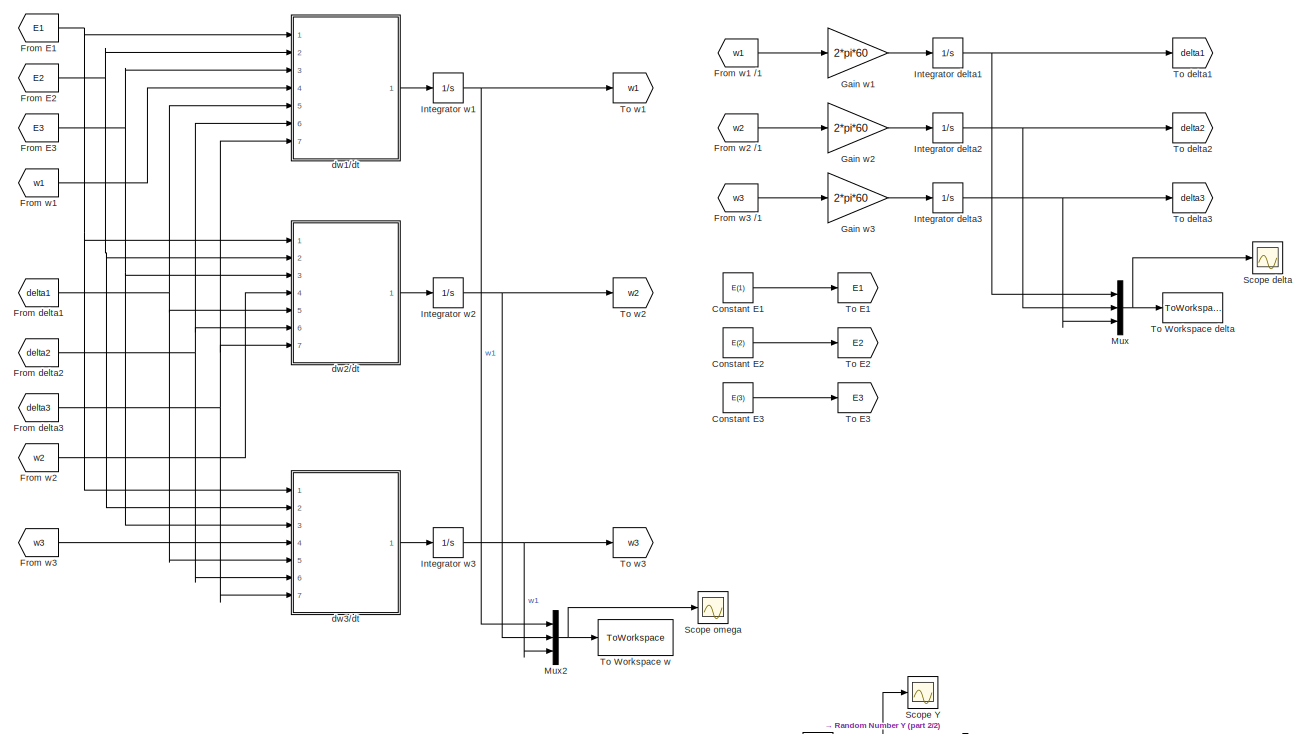
[diagram: root canvas - part 1/2, full width, top band]
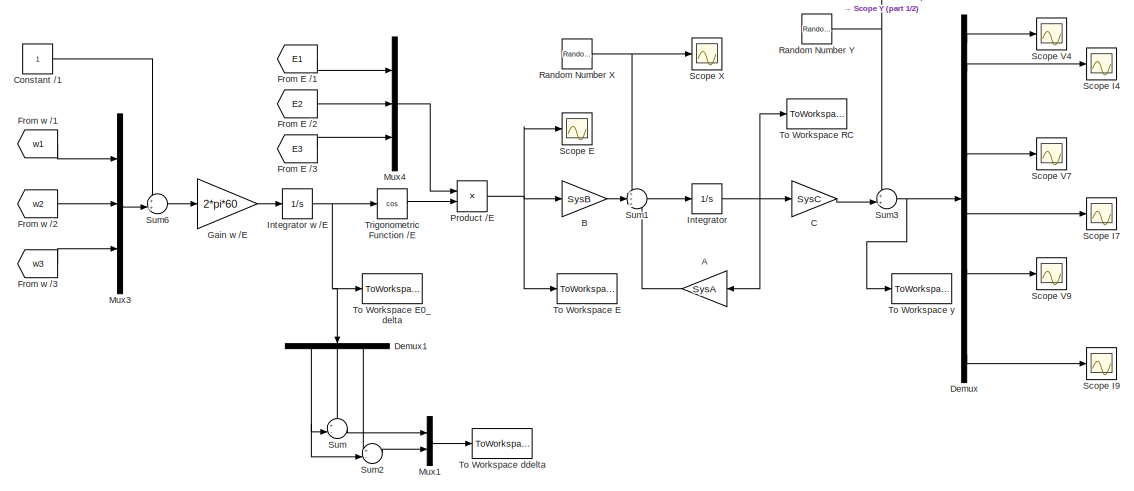
[diagram: root canvas - part 2/2, full width, bottom band]
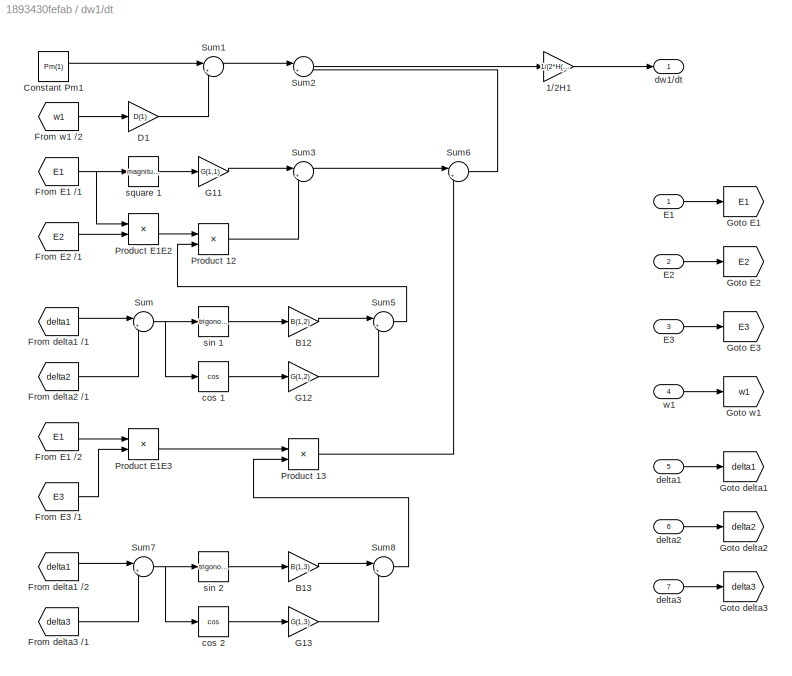
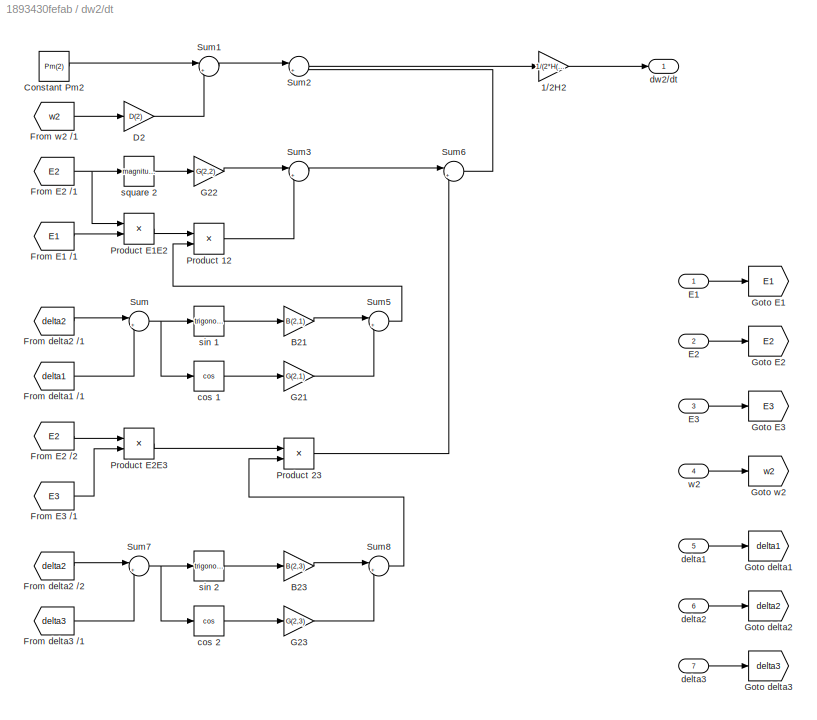
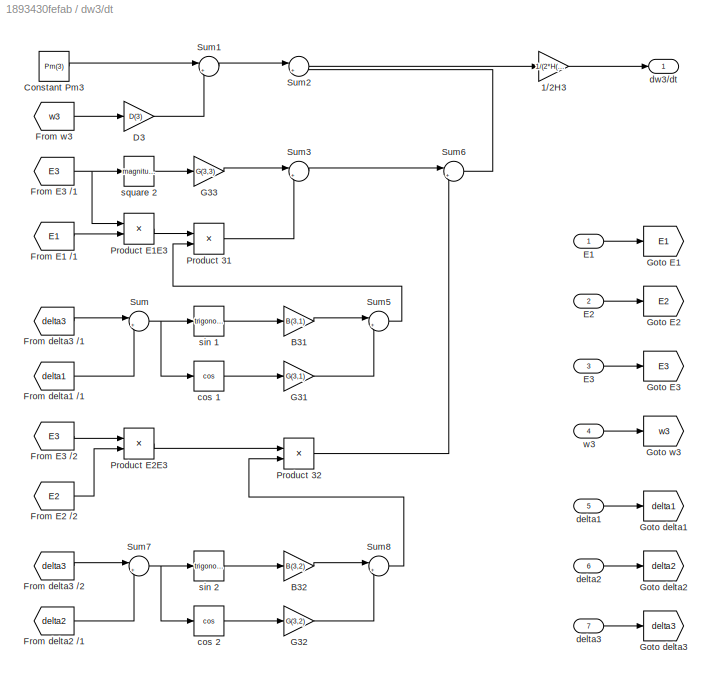
MODEL slx_1893430fefab
KIND model
BLOCK [Gain] A
  Gain = SysA
  Multiplication = Matrix(K*u)
  OutDataTypeStr = Inherit: Inherit via internal rule
  ParamDataTypeStr = Inherit: Inherit via internal rule
  SaturateOnIntegerOverflow = off
BLOCK [Gain] B
  Gain = SysB
  Multiplication = Matrix(K*u)
  OutDataTypeStr = Inherit: Inherit via internal rule
  ParamDataTypeStr = Inherit: Inherit via internal rule
  SaturateOnIntegerOverflow = off
BLOCK [Gain] C
  Gain = SysC
  Multiplication = Matrix(K*u)
  OutDataTypeStr = Inherit: Inherit via internal rule
  ParamDataTypeStr = Inherit: Inherit via internal rule
  SaturateOnIntegerOverflow = off
BLOCK [Constant] Constant //1
BLOCK [Constant] Constant E1
  Value = E(1)
BLOCK [Constant] Constant E2
  Value = E(2)
BLOCK [Constant] Constant E3
  Value = E(3)
BLOCK [Demux] Demux
  DisplayOption = bar
  Outputs = 12
  Ports = [1, 12]
BLOCK [Demux] Demux1
  DisplayOption = bar
  Outputs = 3
  Ports = [1, 3]
BLOCK [From] From E //1
  GotoTag = E1
BLOCK [From] From E //2
  GotoTag = E2
BLOCK [From] From E //3
  GotoTag = E3
BLOCK [From] From E1
  GotoTag = E1
BLOCK [From] From E2
  GotoTag = E2
BLOCK [From] From E3
  GotoTag = E3
BLOCK [From] From delta1
  GotoTag = delta1
BLOCK [From] From delta2
  GotoTag = delta2
BLOCK [From] From delta3
  GotoTag = delta3
BLOCK [From] From w //1
  GotoTag = w1
BLOCK [From] From w //2
  GotoTag = w2
BLOCK [From] From w //3
  GotoTag = w3
BLOCK [From] From w1
  GotoTag = w1
BLOCK [From] From w1 //1
  GotoTag = w1
BLOCK [From] From w2
  GotoTag = w2
BLOCK [From] From w2 //1
  GotoTag = w2
BLOCK [From] From w3
  GotoTag = w3
BLOCK [From] From w3 //1
  GotoTag = w3
BLOCK [Gain] Gain w //E
  Gain = 2*pi*60
  OutDataTypeStr = Inherit: Inherit via internal rule
  ParamDataTypeStr = Inherit: Inherit via internal rule
  SaturateOnIntegerOverflow = off
BLOCK [Gain] Gain w1
  Gain = 2*pi*60
  OutDataTypeStr = Inherit: Inherit via internal rule
  ParamDataTypeStr = Inherit: Inherit via internal rule
  SaturateOnIntegerOverflow = off
BLOCK [Gain] Gain w2
  Gain = 2*pi*60
  OutDataTypeStr = Inherit: Inherit via internal rule
  ParamDataTypeStr = Inherit: Inherit via internal rule
  SaturateOnIntegerOverflow = off
BLOCK [Gain] Gain w3
  Gain = 2*pi*60
  OutDataTypeStr = Inherit: Inherit via internal rule
  ParamDataTypeStr = Inherit: Inherit via internal rule
  SaturateOnIntegerOverflow = off
BLOCK [Integrator] Integrator
  InitialCondition = RC_State0
  Ports = [1, 1]
BLOCK [Integrator] Integrator delta1
  InitialCondition = delta0(1)
  Ports = [1, 1]
BLOCK [Integrator] Integrator delta2
  InitialCondition = delta0(2)
  Ports = [1, 1]
BLOCK [Integrator] Integrator delta3
  InitialCondition = delta0(3)
  Ports = [1, 1]
BLOCK [Integrator] Integrator w //E
  InitialCondition = E0_delta
  Ports = [1, 1]
BLOCK [Integrator] Integrator w1
  InitialCondition = w0(1)
  Ports = [1, 1]
BLOCK [Integrator] Integrator w2
  InitialCondition = w0(2)
  Ports = [1, 1]
BLOCK [Integrator] Integrator w3
  InitialCondition = w0(3)
  Ports = [1, 1]
BLOCK [Mux] Mux
  DisplayOption = bar
  Inputs = 3
  Ports = [3, 1]
BLOCK [Mux] Mux1
  DisplayOption = bar
  Inputs = 2
  Ports = [2, 1]
BLOCK [Mux] Mux2
  DisplayOption = bar
  Inputs = 3
  Ports = [3, 1]
BLOCK [Mux] Mux3
  DisplayOption = bar
  Inputs = 3
  Ports = [3, 1]
BLOCK [Mux] Mux4
  DisplayOption = bar
  Inputs = 3
  Ports = [3, 1]
BLOCK [Product] Product //E
  InputSameDT = off
  OutDataTypeStr = Inherit: Inherit via internal rule
  Ports = [2, 1]
  RndMeth = Floor
  SaturateOnIntegerOverflow = off
BLOCK [RandomNumber] Random Number X
  SampleTime = 1/60/96
  Seed = [round(rand(1)*10000)]
  Variance = XNoisePWR
BLOCK [RandomNumber] Random Number Y
  SampleTime = 1/60/96
  Seed = [round(rand(1)*10000)]
  Variance = YNoisePWR
BLOCK [Scope] Scope E
  DataFormat = StructureWithTime
  Floating = off
  MaxDataPoints = 50000
  NumInputPorts = 1
  Ports = [1]
  SampleTime = 0
  ShowLegends = off
BLOCK [Scope] Scope I4
  DataFormat = StructureWithTime
  Floating = off
  MaxDataPoints = 50000
  NumInputPorts = 1
  Ports = [1]
  SampleTime = 0
  SaveName = ScopeData6
  ShowLegends = off
BLOCK [Scope] Scope I7
  DataFormat = StructureWithTime
  Floating = off
  MaxDataPoints = 50000
  NumInputPorts = 1
  Ports = [1]
  SampleTime = 0
  SaveName = ScopeData7
  ShowLegends = off
BLOCK [Scope] Scope I9
  DataFormat = StructureWithTime
  Floating = off
  MaxDataPoints = 50000
  NumInputPorts = 1
  Ports = [1]
  SampleTime = 0
  SaveName = ScopeData8
  ShowLegends = off
BLOCK [Scope] Scope V4
  DataFormat = StructureWithTime
  Floating = off
  MaxDataPoints = 50000
  NumInputPorts = 1
  Ports = [1]
  SampleTime = 0
  SaveName = ScopeData1
  ShowLegends = off
BLOCK [Scope] Scope V7
  DataFormat = StructureWithTime
  Floating = off
  MaxDataPoints = 50000
  NumInputPorts = 1
  Ports = [1]
  SampleTime = 0
  SaveName = ScopeData2
  ShowLegends = off
BLOCK [Scope] Scope V9
  DataFormat = StructureWithTime
  Floating = off
  MaxDataPoints = 50000
  NumInputPorts = 1
  Ports = [1]
  SampleTime = 0
  SaveName = ScopeData3
  ShowLegends = off
BLOCK [Scope] Scope X
  DataFormat = StructureWithTime
  Floating = off
  MaxDataPoints = 50000
  NumInputPorts = 1
  Ports = [1]
  SampleTime = 0
  SaveName = ScopeData10
  ShowLegends = off
BLOCK [Scope] Scope Y
  DataFormat = StructureWithTime
  Floating = off
  MaxDataPoints = 50000
  NumInputPorts = 1
  Ports = [1]
  SampleTime = 0
  SaveName = ScopeData9
  ShowLegends = off
BLOCK [Scope] Scope delta
  DataFormat = StructureWithTime
  Floating = off
  MaxDataPoints = 50000
  NumInputPorts = 1
  Ports = [1]
  SampleTime = 0
  SaveName = ScopeData4
  ShowLegends = off
BLOCK [Scope] Scope omega
  DataFormat = StructureWithTime
  Floating = off
  MaxDataPoints = 50000
  NumInputPorts = 1
  Ports = [1]
  SampleTime = 0
  SaveName = ScopeData5
  ShowLegends = off
BLOCK [Sum] Sum
  IconShape = round
  InputSameDT = off
  Inputs = +-|
  OutDataTypeStr = Inherit: Inherit via internal rule
  Ports = [2, 1]
  SaturateOnIntegerOverflow = off
BLOCK [Sum] Sum1
  IconShape = round
  InputSameDT = off
  Inputs = +++
  OutDataTypeStr = Inherit: Inherit via internal rule
  Ports = [3, 1]
  SaturateOnIntegerOverflow = off
BLOCK [Sum] Sum2
  IconShape = round
  InputSameDT = off
  Inputs = +-|
  OutDataTypeStr = Inherit: Inherit via internal rule
  Ports = [2, 1]
  SaturateOnIntegerOverflow = off
BLOCK [Sum] Sum3
  IconShape = round
  InputSameDT = off
  Inputs = ++|
  OutDataTypeStr = Inherit: Inherit via internal rule
  Ports = [2, 1]
  SaturateOnIntegerOverflow = off
BLOCK [Sum] Sum6
  IconShape = round
  InputSameDT = off
  Inputs = ++|
  OutDataTypeStr = Inherit: Inherit via internal rule
  Ports = [2, 1]
  SaturateOnIntegerOverflow = off
BLOCK [Goto] To E1
  GotoTag = E1
BLOCK [Goto] To E2
  GotoTag = E2
BLOCK [Goto] To E3
  GotoTag = E3
BLOCK [ToWorkspace] To Workspace E
  MaxDataPoints = Inf
  Ports = [1]
  SampleTime = -1
  SaveFormat = Timeseries
  VariableName = u_input
BLOCK [ToWorkspace] To Workspace E0_delta
  MaxDataPoints = 1
  Ports = [1]
  SampleTime = -1
  VariableName = E0_delta
BLOCK [ToWorkspace] To Workspace RC
  MaxDataPoints = Inf
  Ports = [1]
  SampleTime = -1
  SaveFormat = Timeseries
  VariableName = RC_State
BLOCK [ToWorkspace] To Workspace ddelta
  MaxDataPoints = Inf
  Ports = [1]
  SampleTime = -1
  SaveFormat = Timeseries
  VariableName = ddelta
BLOCK [ToWorkspace] To Workspace delta
  MaxDataPoints = 1
  Ports = [1]
  SampleTime = -1
  VariableName = deltaValues
BLOCK [ToWorkspace] To Workspace w
  MaxDataPoints = Inf
  Ports = [1]
  SampleTime = -1
  SaveFormat = Timeseries
  VariableName = omegaValues
BLOCK [ToWorkspace] To Workspace y
  MaxDataPoints = Inf
  Ports = [1]
  SampleTime = -1
  SaveFormat = Timeseries
  VariableName = y_output
BLOCK [Goto] To delta1
  GotoTag = delta1
BLOCK [Goto] To delta2
  GotoTag = delta2
BLOCK [Goto] To delta3
  GotoTag = delta3
BLOCK [Goto] To w1
  GotoTag = w1
BLOCK [Goto] To w2
  GotoTag = w2
BLOCK [Goto] To w3
  GotoTag = w3
BLOCK [Trigonometry] Trigonometric Function //E
  Operator = cos
  Ports = [1, 1]
BLOCK [SubSystem] dw1//dt
  Ports = [7, 1]
  RequestExecContextInheritance = off
BLOCK [Gain] dw1//dt/1//2H1
  Gain = 1/(2*H(1))
  OutDataTypeStr = Inherit: Inherit via internal rule
  ParamDataTypeStr = Inherit: Inherit via internal rule
  SaturateOnIntegerOverflow = off
BLOCK [Gain] dw1//dt/B12
  Gain = B(1,2)
  OutDataTypeStr = Inherit: Inherit via internal rule
  ParamDataTypeStr = Inherit: Inherit via internal rule
  SaturateOnIntegerOverflow = off
BLOCK [Gain] dw1//dt/B13
  Gain = B(1,3)
  OutDataTypeStr = Inherit: Inherit via internal rule
  ParamDataTypeStr = Inherit: Inherit via internal rule
  SaturateOnIntegerOverflow = off
BLOCK [Constant] dw1//dt/Constant Pm1
  Value = Pm(1)
BLOCK [Gain] dw1//dt/D1
  Gain = D(1)
  OutDataTypeStr = Inherit: Inherit via internal rule
  ParamDataTypeStr = Inherit: Inherit via internal rule
  SaturateOnIntegerOverflow = off
BLOCK [Inport] dw1//dt/E1
  IconDisplay = Port number
BLOCK [Inport] dw1//dt/E2
  IconDisplay = Port number
  Port = 2
BLOCK [Inport] dw1//dt/E3
  IconDisplay = Port number
  Port = 3
BLOCK [From] dw1//dt/From E1 //1
  GotoTag = E1
BLOCK [From] dw1//dt/From E1 //2
  GotoTag = E1
BLOCK [From] dw1//dt/From E2 //1
  GotoTag = E2
BLOCK [From] dw1//dt/From E3 //1
  GotoTag = E3
BLOCK [From] dw1//dt/From delta1 //1
  GotoTag = delta1
BLOCK [From] dw1//dt/From delta1 //2
  GotoTag = delta1
BLOCK [From] dw1//dt/From delta2 //1
  GotoTag = delta2
BLOCK [From] dw1//dt/From delta3 //1
  GotoTag = delta3
BLOCK [From] dw1//dt/From w1 //2
  GotoTag = w1
BLOCK [Gain] dw1//dt/G11
  Gain = G(1,1)
  OutDataTypeStr = Inherit: Inherit via internal rule
  ParamDataTypeStr = Inherit: Inherit via internal rule
  SaturateOnIntegerOverflow = off
BLOCK [Gain] dw1//dt/G12
  Gain = G(1,2)
  OutDataTypeStr = Inherit: Inherit via internal rule
  ParamDataTypeStr = Inherit: Inherit via internal rule
  SaturateOnIntegerOverflow = off
BLOCK [Gain] dw1//dt/G13
  Gain = G(1,3)
  OutDataTypeStr = Inherit: Inherit via internal rule
  ParamDataTypeStr = Inherit: Inherit via internal rule
  SaturateOnIntegerOverflow = off
BLOCK [Goto] dw1//dt/Goto E1
  GotoTag = E1
BLOCK [Goto] dw1//dt/Goto E2
  GotoTag = E2
BLOCK [Goto] dw1//dt/Goto E3
  GotoTag = E3
BLOCK [Goto] dw1//dt/Goto delta1
  GotoTag = delta1
BLOCK [Goto] dw1//dt/Goto delta2
  GotoTag = delta2
BLOCK [Goto] dw1//dt/Goto delta3
  GotoTag = delta3
BLOCK [Goto] dw1//dt/Goto w1
  GotoTag = w1
BLOCK [Product] dw1//dt/Product 12
  InputSameDT = off
  OutDataTypeStr = Inherit: Inherit via internal rule
  Ports = [2, 1]
  RndMeth = Floor
  SaturateOnIntegerOverflow = off
BLOCK [Product] dw1//dt/Product 13
  InputSameDT = off
  OutDataTypeStr = Inherit: Inherit via internal rule
  Ports = [2, 1]
  RndMeth = Floor
  SaturateOnIntegerOverflow = off
BLOCK [Product] dw1//dt/Product E1E2
  InputSameDT = off
  OutDataTypeStr = Inherit: Inherit via internal rule
  Ports = [2, 1]
  RndMeth = Floor
  SaturateOnIntegerOverflow = off
BLOCK [Product] dw1//dt/Product E1E3
  InputSameDT = off
  OutDataTypeStr = Inherit: Inherit via internal rule
  Ports = [2, 1]
  RndMeth = Floor
  SaturateOnIntegerOverflow = off
BLOCK [Sum] dw1//dt/Sum
  IconShape = round
  InputSameDT = off
  Inputs = |+-
  OutDataTypeStr = Inherit: Inherit via internal rule
  Ports = [2, 1]
  SaturateOnIntegerOverflow = off
BLOCK [Sum] dw1//dt/Sum1
  IconShape = round
  InputSameDT = off
  Inputs = |+-
  OutDataTypeStr = Inherit: Inherit via internal rule
  Ports = [2, 1]
  SaturateOnIntegerOverflow = off
BLOCK [Sum] dw1//dt/Sum2
  IconShape = round
  InputSameDT = off
  Inputs = |+-
  OutDataTypeStr = Inherit: Inherit via internal rule
  Ports = [2, 1]
  SaturateOnIntegerOverflow = off
BLOCK [Sum] dw1//dt/Sum3
  IconShape = round
  InputSameDT = off
  Inputs = |++
  OutDataTypeStr = Inherit: Inherit via internal rule
  Ports = [2, 1]
  SaturateOnIntegerOverflow = off
BLOCK [Sum] dw1//dt/Sum5
  IconShape = round
  InputSameDT = off
  Inputs = |++
  OutDataTypeStr = Inherit: Inherit via internal rule
  Ports = [2, 1]
  SaturateOnIntegerOverflow = off
BLOCK [Sum] dw1//dt/Sum6
  IconShape = round
  InputSameDT = off
  Inputs = |++
  OutDataTypeStr = Inherit: Inherit via internal rule
  Ports = [2, 1]
  SaturateOnIntegerOverflow = off
BLOCK [Sum] dw1//dt/Sum7
  IconShape = round
  InputSameDT = off
  Inputs = |+-
  OutDataTypeStr = Inherit: Inherit via internal rule
  Ports = [2, 1]
  SaturateOnIntegerOverflow = off
BLOCK [Sum] dw1//dt/Sum8
  IconShape = round
  InputSameDT = off
  Inputs = |++
  OutDataTypeStr = Inherit: Inherit via internal rule
  Ports = [2, 1]
  SaturateOnIntegerOverflow = off
BLOCK [Trigonometry] dw1//dt/cos 1
  Operator = cos
  Ports = [1, 1]
BLOCK [Trigonometry] dw1//dt/cos 2
  Operator = cos
  Ports = [1, 1]
BLOCK [Inport] dw1//dt/delta1
  IconDisplay = Port number
  Port = 5
BLOCK [Inport] dw1//dt/delta2
  IconDisplay = Port number
  Port = 6
BLOCK [Inport] dw1//dt/delta3
  IconDisplay = Port number
  Port = 7
BLOCK [Outport] dw1//dt/dw1//dt
  IconDisplay = Port number
BLOCK [Trigonometry] dw1//dt/sin 1
  Ports = [1, 1]
BLOCK [Trigonometry] dw1//dt/sin 2
  Ports = [1, 1]
BLOCK [Math] dw1//dt/square 1
  Operator = magnitude^2
  Ports = [1, 1]
BLOCK [Inport] dw1//dt/w1
  IconDisplay = Port number
  Port = 4
BLOCK [SubSystem] dw2//dt
  Ports = [7, 1]
  RequestExecContextInheritance = off
BLOCK [Gain] dw2//dt/1//2H2
  Gain = 1/(2*H(2))
  OutDataTypeStr = Inherit: Inherit via internal rule
  ParamDataTypeStr = Inherit: Inherit via internal rule
  SaturateOnIntegerOverflow = off
BLOCK [Gain] dw2//dt/B21
  Gain = B(2,1)
  OutDataTypeStr = Inherit: Inherit via internal rule
  ParamDataTypeStr = Inherit: Inherit via internal rule
  SaturateOnIntegerOverflow = off
BLOCK [Gain] dw2//dt/B23
  Gain = B(2,3)
  OutDataTypeStr = Inherit: Inherit via internal rule
  ParamDataTypeStr = Inherit: Inherit via internal rule
  SaturateOnIntegerOverflow = off
BLOCK [Constant] dw2//dt/Constant Pm2
  Value = Pm(2)
BLOCK [Gain] dw2//dt/D2
  Gain = D(2)
  OutDataTypeStr = Inherit: Inherit via internal rule
  ParamDataTypeStr = Inherit: Inherit via internal rule
  SaturateOnIntegerOverflow = off
BLOCK [Inport] dw2//dt/E1
  IconDisplay = Port number
BLOCK [Inport] dw2//dt/E2
  IconDisplay = Port number
  Port = 2
BLOCK [Inport] dw2//dt/E3
  IconDisplay = Port number
  Port = 3
BLOCK [From] dw2//dt/From E1 //1
  GotoTag = E1
BLOCK [From] dw2//dt/From E2 //1
  GotoTag = E2
BLOCK [From] dw2//dt/From E2 //2
  GotoTag = E2
BLOCK [From] dw2//dt/From E3 //1
  GotoTag = E3
BLOCK [From] dw2//dt/From delta1 //1
  GotoTag = delta1
BLOCK [From] dw2//dt/From delta2 //1
  GotoTag = delta2
BLOCK [From] dw2//dt/From delta2 //2
  GotoTag = delta2
BLOCK [From] dw2//dt/From delta3 //1
  GotoTag = delta3
BLOCK [From] dw2//dt/From w2 //1
  GotoTag = w2
BLOCK [Gain] dw2//dt/G21
  Gain = G(2,1)
  OutDataTypeStr = Inherit: Inherit via internal rule
  ParamDataTypeStr = Inherit: Inherit via internal rule
  SaturateOnIntegerOverflow = off
BLOCK [Gain] dw2//dt/G22
  Gain = G(2,2)
  OutDataTypeStr = Inherit: Inherit via internal rule
  ParamDataTypeStr = Inherit: Inherit via internal rule
  SaturateOnIntegerOverflow = off
BLOCK [Gain] dw2//dt/G23
  Gain = G(2,3)
  OutDataTypeStr = Inherit: Inherit via internal rule
  ParamDataTypeStr = Inherit: Inherit via internal rule
  SaturateOnIntegerOverflow = off
BLOCK [Goto] dw2//dt/Goto E1
  GotoTag = E1
BLOCK [Goto] dw2//dt/Goto E2
  GotoTag = E2
BLOCK [Goto] dw2//dt/Goto E3
  GotoTag = E3
BLOCK [Goto] dw2//dt/Goto delta1
  GotoTag = delta1
BLOCK [Goto] dw2//dt/Goto delta2
  GotoTag = delta2
BLOCK [Goto] dw2//dt/Goto delta3
  GotoTag = delta3
BLOCK [Goto] dw2//dt/Goto w2
  GotoTag = w2
BLOCK [Product] dw2//dt/Product 12
  InputSameDT = off
  OutDataTypeStr = Inherit: Inherit via internal rule
  Ports = [2, 1]
  RndMeth = Floor
  SaturateOnIntegerOverflow = off
BLOCK [Product] dw2//dt/Product 23
  InputSameDT = off
  OutDataTypeStr = Inherit: Inherit via internal rule
  Ports = [2, 1]
  RndMeth = Floor
  SaturateOnIntegerOverflow = off
BLOCK [Product] dw2//dt/Product E1E2
  InputSameDT = off
  OutDataTypeStr = Inherit: Inherit via internal rule
  Ports = [2, 1]
  RndMeth = Floor
  SaturateOnIntegerOverflow = off
BLOCK [Product] dw2//dt/Product E2E3
  InputSameDT = off
  OutDataTypeStr = Inherit: Inherit via internal rule
  Ports = [2, 1]
  RndMeth = Floor
  SaturateOnIntegerOverflow = off
BLOCK [Sum] dw2//dt/Sum
  IconShape = round
  InputSameDT = off
  Inputs = |+-
  OutDataTypeStr = Inherit: Inherit via internal rule
  Ports = [2, 1]
  SaturateOnIntegerOverflow = off
BLOCK [Sum] dw2//dt/Sum1
  IconShape = round
  InputSameDT = off
  Inputs = |+-
  OutDataTypeStr = Inherit: Inherit via internal rule
  Ports = [2, 1]
  SaturateOnIntegerOverflow = off
BLOCK [Sum] dw2//dt/Sum2
  IconShape = round
  InputSameDT = off
  Inputs = |+-
  OutDataTypeStr = Inherit: Inherit via internal rule
  Ports = [2, 1]
  SaturateOnIntegerOverflow = off
BLOCK [Sum] dw2//dt/Sum3
  IconShape = round
  InputSameDT = off
  Inputs = |++
  OutDataTypeStr = Inherit: Inherit via internal rule
  Ports = [2, 1]
  SaturateOnIntegerOverflow = off
BLOCK [Sum] dw2//dt/Sum5
  IconShape = round
  InputSameDT = off
  Inputs = |++
  OutDataTypeStr = Inherit: Inherit via internal rule
  Ports = [2, 1]
  SaturateOnIntegerOverflow = off
BLOCK [Sum] dw2//dt/Sum6
  IconShape = round
  InputSameDT = off
  Inputs = |++
  OutDataTypeStr = Inherit: Inherit via internal rule
  Ports = [2, 1]
  SaturateOnIntegerOverflow = off
BLOCK [Sum] dw2//dt/Sum7
  IconShape = round
  InputSameDT = off
  Inputs = |+-
  OutDataTypeStr = Inherit: Inherit via internal rule
  Ports = [2, 1]
  SaturateOnIntegerOverflow = off
BLOCK [Sum] dw2//dt/Sum8
  IconShape = round
  InputSameDT = off
  Inputs = |++
  OutDataTypeStr = Inherit: Inherit via internal rule
  Ports = [2, 1]
  SaturateOnIntegerOverflow = off
BLOCK [Trigonometry] dw2//dt/cos 1
  Operator = cos
  Ports = [1, 1]
BLOCK [Trigonometry] dw2//dt/cos 2
  Operator = cos
  Ports = [1, 1]
BLOCK [Inport] dw2//dt/delta1
  IconDisplay = Port number
  Port = 5
BLOCK [Inport] dw2//dt/delta2
  IconDisplay = Port number
  Port = 6
BLOCK [Inport] dw2//dt/delta3
  IconDisplay = Port number
  Port = 7
BLOCK [Outport] dw2//dt/dw2//dt
  IconDisplay = Port number
BLOCK [Trigonometry] dw2//dt/sin 1
  Ports = [1, 1]
BLOCK [Trigonometry] dw2//dt/sin 2
  Ports = [1, 1]
BLOCK [Math] dw2//dt/square 2
  Operator = magnitude^2
  Ports = [1, 1]
BLOCK [Inport] dw2//dt/w2
  IconDisplay = Port number
  Port = 4
BLOCK [SubSystem] dw3//dt
  Ports = [7, 1]
  RequestExecContextInheritance = off
BLOCK [Gain] dw3//dt/1//2H3
  Gain = 1/(2*H(3))
  OutDataTypeStr = Inherit: Inherit via internal rule
  ParamDataTypeStr = Inherit: Inherit via internal rule
  SaturateOnIntegerOverflow = off
BLOCK [Gain] dw3//dt/B31
  Gain = B(3,1)
  OutDataTypeStr = Inherit: Inherit via internal rule
  ParamDataTypeStr = Inherit: Inherit via internal rule
  SaturateOnIntegerOverflow = off
BLOCK [Gain] dw3//dt/B32
  Gain = B(3,2)
  OutDataTypeStr = Inherit: Inherit via internal rule
  ParamDataTypeStr = Inherit: Inherit via internal rule
  SaturateOnIntegerOverflow = off
BLOCK [Constant] dw3//dt/Constant Pm3
  Value = Pm(3)
BLOCK [Gain] dw3//dt/D3
  Gain = D(3)
  OutDataTypeStr = Inherit: Inherit via internal rule
  ParamDataTypeStr = Inherit: Inherit via internal rule
  SaturateOnIntegerOverflow = off
BLOCK [Inport] dw3//dt/E1
  IconDisplay = Port number
BLOCK [Inport] dw3//dt/E2
  IconDisplay = Port number
  Port = 2
BLOCK [Inport] dw3//dt/E3
  IconDisplay = Port number
  Port = 3
BLOCK [From] dw3//dt/From E1 //1
  GotoTag = E1
BLOCK [From] dw3//dt/From E2 //2
  GotoTag = E2
BLOCK [From] dw3//dt/From E3 //1
  GotoTag = E3
BLOCK [From] dw3//dt/From E3 //2
  GotoTag = E3
BLOCK [From] dw3//dt/From delta1 //1
  GotoTag = delta1
BLOCK [From] dw3//dt/From delta2 //1
  GotoTag = delta2
BLOCK [From] dw3//dt/From delta3 //1
  GotoTag = delta3
BLOCK [From] dw3//dt/From delta3 //2
  GotoTag = delta3
BLOCK [From] dw3//dt/From w3
  GotoTag = w3
BLOCK [Gain] dw3//dt/G31
  Gain = G(3,1)
  OutDataTypeStr = Inherit: Inherit via internal rule
  ParamDataTypeStr = Inherit: Inherit via internal rule
  SaturateOnIntegerOverflow = off
BLOCK [Gain] dw3//dt/G32
  Gain = G(3,2)
  OutDataTypeStr = Inherit: Inherit via internal rule
  ParamDataTypeStr = Inherit: Inherit via internal rule
  SaturateOnIntegerOverflow = off
BLOCK [Gain] dw3//dt/G33
  Gain = G(3,3)
  OutDataTypeStr = Inherit: Inherit via internal rule
  ParamDataTypeStr = Inherit: Inherit via internal rule
  SaturateOnIntegerOverflow = off
BLOCK [Goto] dw3//dt/Goto E1
  GotoTag = E1
BLOCK [Goto] dw3//dt/Goto E2
  GotoTag = E2
BLOCK [Goto] dw3//dt/Goto E3
  GotoTag = E3
BLOCK [Goto] dw3//dt/Goto delta1
  GotoTag = delta1
BLOCK [Goto] dw3//dt/Goto delta2
  GotoTag = delta2
BLOCK [Goto] dw3//dt/Goto delta3
  GotoTag = delta3
BLOCK [Goto] dw3//dt/Goto w3
  GotoTag = w3
BLOCK [Product] dw3//dt/Product 31
  InputSameDT = off
  OutDataTypeStr = Inherit: Inherit via internal rule
  Ports = [2, 1]
  RndMeth = Floor
  SaturateOnIntegerOverflow = off
BLOCK [Product] dw3//dt/Product 32
  InputSameDT = off
  OutDataTypeStr = Inherit: Inherit via internal rule
  Ports = [2, 1]
  RndMeth = Floor
  SaturateOnIntegerOverflow = off
BLOCK [Product] dw3//dt/Product E1E3
  InputSameDT = off
  OutDataTypeStr = Inherit: Inherit via internal rule
  Ports = [2, 1]
  RndMeth = Floor
  SaturateOnIntegerOverflow = off
BLOCK [Product] dw3//dt/Product E2E3
  InputSameDT = off
  OutDataTypeStr = Inherit: Inherit via internal rule
  Ports = [2, 1]
  RndMeth = Floor
  SaturateOnIntegerOverflow = off
BLOCK [Sum] dw3//dt/Sum
  IconShape = round
  InputSameDT = off
  Inputs = |+-
  OutDataTypeStr = Inherit: Inherit via internal rule
  Ports = [2, 1]
  SaturateOnIntegerOverflow = off
BLOCK [Sum] dw3//dt/Sum1
  IconShape = round
  InputSameDT = off
  Inputs = |+-
  OutDataTypeStr = Inherit: Inherit via internal rule
  Ports = [2, 1]
  SaturateOnIntegerOverflow = off
BLOCK [Sum] dw3//dt/Sum2
  IconShape = round
  InputSameDT = off
  Inputs = |+-
  OutDataTypeStr = Inherit: Inherit via internal rule
  Ports = [2, 1]
  SaturateOnIntegerOverflow = off
BLOCK [Sum] dw3//dt/Sum3
  IconShape = round
  InputSameDT = off
  Inputs = |++
  OutDataTypeStr = Inherit: Inherit via internal rule
  Ports = [2, 1]
  SaturateOnIntegerOverflow = off
BLOCK [Sum] dw3//dt/Sum5
  IconShape = round
  InputSameDT = off
  Inputs = |++
  OutDataTypeStr = Inherit: Inherit via internal rule
  Ports = [2, 1]
  SaturateOnIntegerOverflow = off
BLOCK [Sum] dw3//dt/Sum6
  IconShape = round
  InputSameDT = off
  Inputs = |++
  OutDataTypeStr = Inherit: Inherit via internal rule
  Ports = [2, 1]
  SaturateOnIntegerOverflow = off
BLOCK [Sum] dw3//dt/Sum7
  IconShape = round
  InputSameDT = off
  Inputs = |+-
  OutDataTypeStr = Inherit: Inherit via internal rule
  Ports = [2, 1]
  SaturateOnIntegerOverflow = off
BLOCK [Sum] dw3//dt/Sum8
  IconShape = round
  InputSameDT = off
  Inputs = |++
  OutDataTypeStr = Inherit: Inherit via internal rule
  Ports = [2, 1]
  SaturateOnIntegerOverflow = off
BLOCK [Trigonometry] dw3//dt/cos 1
  Operator = cos
  Ports = [1, 1]
BLOCK [Trigonometry] dw3//dt/cos 2
  Operator = cos
  Ports = [1, 1]
BLOCK [Inport] dw3//dt/delta1
  IconDisplay = Port number
  Port = 5
BLOCK [Inport] dw3//dt/delta2
  IconDisplay = Port number
  Port = 6
BLOCK [Inport] dw3//dt/delta3
  IconDisplay = Port number
  Port = 7
BLOCK [Outport] dw3//dt/dw3//dt
  IconDisplay = Port number
BLOCK [Trigonometry] dw3//dt/sin 1
  Ports = [1, 1]
BLOCK [Trigonometry] dw3//dt/sin 2
  Ports = [1, 1]
BLOCK [Math] dw3//dt/square 2
  Operator = magnitude^2
  Ports = [1, 1]
BLOCK [Inport] dw3//dt/w3
  IconDisplay = Port number
  Port = 4
LINE A:1 -> Sum1:3
LINE B:1 -> Sum1:2
LINE C:1 -> Sum3:2
LINE Constant //1:1 -> Sum6:1
LINE Constant E1:1 -> To E1:1
LINE Constant E2:1 -> To E2:1
LINE Constant E3:1 -> To E3:1
NET Demux1:1 -> Sum2:2, Sum:2
LINE Demux1:2 -> Sum:1
LINE Demux1:3 -> Sum2:1
LINE Demux:1 -> Scope V4:1
LINE Demux:12 -> Scope I9:1
LINE Demux:2 -> Scope I4:1
LINE Demux:5 -> Scope V7:1
LINE Demux:7 -> Scope I7:1
LINE Demux:9 -> Scope V9:1
LINE From E //1:1 -> Mux4:1
LINE From E //2:1 -> Mux4:2
LINE From E //3:1 -> Mux4:3
NET From E1:1 -> dw1//dt:1, dw2//dt:1, dw3//dt:1
NET From E2:1 -> dw1//dt:2, dw2//dt:2, dw3//dt:2
NET From E3:1 -> dw1//dt:3, dw2//dt:3, dw3//dt:3
NET From delta1:1 -> dw1//dt:5, dw2//dt:5, dw3//dt:5
NET From delta2:1 -> dw1//dt:6, dw2//dt:6, dw3//dt:6
NET From delta3:1 -> dw1//dt:7, dw2//dt:7, dw3//dt:7
LINE From w //1:1 -> Mux3:1
LINE From w //2:1 -> Mux3:2
LINE From w //3:1 -> Mux3:3
LINE From w1 //1:1 -> Gain w1:1
LINE From w1:1 -> dw1//dt:4
LINE From w2 //1:1 -> Gain w2:1
LINE From w2:1 -> dw2//dt:4
LINE From w3 //1:1 -> Gain w3:1
LINE From w3:1 -> dw3//dt:4
LINE Gain w //E:1 -> Integrator w //E:1
LINE Gain w1:1 -> Integrator delta1:1
LINE Gain w2:1 -> Integrator delta2:1
LINE Gain w3:1 -> Integrator delta3:1
NET Integrator delta1:1 -> Mux:1, To delta1:1
NET Integrator delta2:1 -> Mux:2, To delta2:1
NET Integrator delta3:1 -> Mux:3, To delta3:1
NET Integrator w //E:1 -> Demux1:1, To Workspace E0_delta:1, Trigonometric Function //E:1
NET Integrator w1:1 -> Mux2:1, To w1:1
NET Integrator w2:1 -> Mux2:2, To w2:1
NET Integrator w3:1 -> Mux2:3, To w3:1
NET Integrator:1 -> A:1, C:1, To Workspace RC:1
LINE Mux1:1 -> To Workspace ddelta:1
NET Mux2:1 -> Scope omega:1, To Workspace w:1
LINE Mux3:1 -> Sum6:2
LINE Mux4:1 -> Product //E:1
NET Mux:1 -> Scope delta:1, To Workspace delta:1
NET Product //E:1 -> B:1, Scope E:1, To Workspace E:1
NET Random Number X:1 -> Scope X:1, Sum1:1
NET Random Number Y:1 -> Scope Y:1, Sum3:1
LINE Sum1:1 -> Integrator:1
LINE Sum2:1 -> Mux1:2
NET Sum3:1 -> Demux:1, To Workspace y:1
LINE Sum6:1 -> Gain w //E:1
LINE Sum:1 -> Mux1:1
LINE Trigonometric Function //E:1 -> Product //E:2
LINE dw1//dt/1//2H1:1 -> dw1//dt/dw1//dt:1
LINE dw1//dt/B12:1 -> dw1//dt/Sum5:1
LINE dw1//dt/B13:1 -> dw1//dt/Sum8:1
LINE dw1//dt/Constant Pm1:1 -> dw1//dt/Sum1:1
LINE dw1//dt/D1:1 -> dw1//dt/Sum1:2
LINE dw1//dt/E1:1 -> dw1//dt/Goto E1:1
LINE dw1//dt/E2:1 -> dw1//dt/Goto E2:1
LINE dw1//dt/E3:1 -> dw1//dt/Goto E3:1
NET dw1//dt/From E1 //1:1 -> dw1//dt/Product E1E2:1, dw1//dt/square 1:1
LINE dw1//dt/From E1 //2:1 -> dw1//dt/Product E1E3:1
LINE dw1//dt/From E2 //1:1 -> dw1//dt/Product E1E2:2
LINE dw1//dt/From E3 //1:1 -> dw1//dt/Product E1E3:2
LINE dw1//dt/From delta1 //1:1 -> dw1//dt/Sum:1
LINE dw1//dt/From delta1 //2:1 -> dw1//dt/Sum7:1
LINE dw1//dt/From delta2 //1:1 -> dw1//dt/Sum:2
LINE dw1//dt/From delta3 //1:1 -> dw1//dt/Sum7:2
LINE dw1//dt/From w1 //2:1 -> dw1//dt/D1:1
LINE dw1//dt/G11:1 -> dw1//dt/Sum3:1
LINE dw1//dt/G12:1 -> dw1//dt/Sum5:2
LINE dw1//dt/G13:1 -> dw1//dt/Sum8:2
LINE dw1//dt/Product 12:1 -> dw1//dt/Sum3:2
LINE dw1//dt/Product 13:1 -> dw1//dt/Sum6:2
LINE dw1//dt/Product E1E2:1 -> dw1//dt/Product 12:1
LINE dw1//dt/Product E1E3:1 -> dw1//dt/Product 13:1
LINE dw1//dt/Sum1:1 -> dw1//dt/Sum2:1
LINE dw1//dt/Sum2:1 -> dw1//dt/1//2H1:1
LINE dw1//dt/Sum3:1 -> dw1//dt/Sum6:1
LINE dw1//dt/Sum5:1 -> dw1//dt/Product 12:2
LINE dw1//dt/Sum6:1 -> dw1//dt/Sum2:2
NET dw1//dt/Sum7:1 -> dw1//dt/cos 2:1, dw1//dt/sin 2:1
LINE dw1//dt/Sum8:1 -> dw1//dt/Product 13:2
NET dw1//dt/Sum:1 -> dw1//dt/cos 1:1, dw1//dt/sin 1:1
LINE dw1//dt/cos 1:1 -> dw1//dt/G12:1
LINE dw1//dt/cos 2:1 -> dw1//dt/G13:1
LINE dw1//dt/delta1:1 -> dw1//dt/Goto delta1:1
LINE dw1//dt/delta2:1 -> dw1//dt/Goto delta2:1
LINE dw1//dt/delta3:1 -> dw1//dt/Goto delta3:1
LINE dw1//dt/sin 1:1 -> dw1//dt/B12:1
LINE dw1//dt/sin 2:1 -> dw1//dt/B13:1
LINE dw1//dt/square 1:1 -> dw1//dt/G11:1
LINE dw1//dt/w1:1 -> dw1//dt/Goto w1:1
LINE dw1//dt:1 -> Integrator w1:1
LINE dw2//dt/1//2H2:1 -> dw2//dt/dw2//dt:1
LINE dw2//dt/B21:1 -> dw2//dt/Sum5:1
LINE dw2//dt/B23:1 -> dw2//dt/Sum8:1
LINE dw2//dt/Constant Pm2:1 -> dw2//dt/Sum1:1
LINE dw2//dt/D2:1 -> dw2//dt/Sum1:2
LINE dw2//dt/E1:1 -> dw2//dt/Goto E1:1
LINE dw2//dt/E2:1 -> dw2//dt/Goto E2:1
LINE dw2//dt/E3:1 -> dw2//dt/Goto E3:1
LINE dw2//dt/From E1 //1:1 -> dw2//dt/Product E1E2:2
NET dw2//dt/From E2 //1:1 -> dw2//dt/Product E1E2:1, dw2//dt/square 2:1
LINE dw2//dt/From E2 //2:1 -> dw2//dt/Product E2E3:1
LINE dw2//dt/From E3 //1:1 -> dw2//dt/Product E2E3:2
LINE dw2//dt/From delta1 //1:1 -> dw2//dt/Sum:2
LINE dw2//dt/From delta2 //1:1 -> dw2//dt/Sum:1
LINE dw2//dt/From delta2 //2:1 -> dw2//dt/Sum7:1
LINE dw2//dt/From delta3 //1:1 -> dw2//dt/Sum7:2
LINE dw2//dt/From w2 //1:1 -> dw2//dt/D2:1
LINE dw2//dt/G21:1 -> dw2//dt/Sum5:2
LINE dw2//dt/G22:1 -> dw2//dt/Sum3:1
LINE dw2//dt/G23:1 -> dw2//dt/Sum8:2
LINE dw2//dt/Product 12:1 -> dw2//dt/Sum3:2
LINE dw2//dt/Product 23:1 -> dw2//dt/Sum6:2
LINE dw2//dt/Product E1E2:1 -> dw2//dt/Product 12:1
LINE dw2//dt/Product E2E3:1 -> dw2//dt/Product 23:1
LINE dw2//dt/Sum1:1 -> dw2//dt/Sum2:1
LINE dw2//dt/Sum2:1 -> dw2//dt/1//2H2:1
LINE dw2//dt/Sum3:1 -> dw2//dt/Sum6:1
LINE dw2//dt/Sum5:1 -> dw2//dt/Product 12:2
LINE dw2//dt/Sum6:1 -> dw2//dt/Sum2:2
NET dw2//dt/Sum7:1 -> dw2//dt/cos 2:1, dw2//dt/sin 2:1
LINE dw2//dt/Sum8:1 -> dw2//dt/Product 23:2
NET dw2//dt/Sum:1 -> dw2//dt/cos 1:1, dw2//dt/sin 1:1
LINE dw2//dt/cos 1:1 -> dw2//dt/G21:1
LINE dw2//dt/cos 2:1 -> dw2//dt/G23:1
LINE dw2//dt/delta1:1 -> dw2//dt/Goto delta1:1
LINE dw2//dt/delta2:1 -> dw2//dt/Goto delta2:1
LINE dw2//dt/delta3:1 -> dw2//dt/Goto delta3:1
LINE dw2//dt/sin 1:1 -> dw2//dt/B21:1
LINE dw2//dt/sin 2:1 -> dw2//dt/B23:1
LINE dw2//dt/square 2:1 -> dw2//dt/G22:1
LINE dw2//dt/w2:1 -> dw2//dt/Goto w2:1
LINE dw2//dt:1 -> Integrator w2:1
LINE dw3//dt/1//2H3:1 -> dw3//dt/dw3//dt:1
LINE dw3//dt/B31:1 -> dw3//dt/Sum5:1
LINE dw3//dt/B32:1 -> dw3//dt/Sum8:1
LINE dw3//dt/Constant Pm3:1 -> dw3//dt/Sum1:1
LINE dw3//dt/D3:1 -> dw3//dt/Sum1:2
LINE dw3//dt/E1:1 -> dw3//dt/Goto E1:1
LINE dw3//dt/E2:1 -> dw3//dt/Goto E2:1
LINE dw3//dt/E3:1 -> dw3//dt/Goto E3:1
LINE dw3//dt/From E1 //1:1 -> dw3//dt/Product E1E3:2
LINE dw3//dt/From E2 //2:1 -> dw3//dt/Product E2E3:2
NET dw3//dt/From E3 //1:1 -> dw3//dt/Product E1E3:1, dw3//dt/square 2:1
LINE dw3//dt/From E3 //2:1 -> dw3//dt/Product E2E3:1
LINE dw3//dt/From delta1 //1:1 -> dw3//dt/Sum:2
LINE dw3//dt/From delta2 //1:1 -> dw3//dt/Sum7:2
LINE dw3//dt/From delta3 //1:1 -> dw3//dt/Sum:1
LINE dw3//dt/From delta3 //2:1 -> dw3//dt/Sum7:1
LINE dw3//dt/From w3:1 -> dw3//dt/D3:1
LINE dw3//dt/G31:1 -> dw3//dt/Sum5:2
LINE dw3//dt/G32:1 -> dw3//dt/Sum8:2
LINE dw3//dt/G33:1 -> dw3//dt/Sum3:1
LINE dw3//dt/Product 31:1 -> dw3//dt/Sum3:2
LINE dw3//dt/Product 32:1 -> dw3//dt/Sum6:2
LINE dw3//dt/Product E1E3:1 -> dw3//dt/Product 31:1
LINE dw3//dt/Product E2E3:1 -> dw3//dt/Product 32:1
LINE dw3//dt/Sum1:1 -> dw3//dt/Sum2:1
LINE dw3//dt/Sum2:1 -> dw3//dt/1//2H3:1
LINE dw3//dt/Sum3:1 -> dw3//dt/Sum6:1
LINE dw3//dt/Sum5:1 -> dw3//dt/Product 31:2
LINE dw3//dt/Sum6:1 -> dw3//dt/Sum2:2
NET dw3//dt/Sum7:1 -> dw3//dt/cos 2:1, dw3//dt/sin 2:1
LINE dw3//dt/Sum8:1 -> dw3//dt/Product 32:2
NET dw3//dt/Sum:1 -> dw3//dt/cos 1:1, dw3//dt/sin 1:1
LINE dw3//dt/cos 1:1 -> dw3//dt/G31:1
LINE dw3//dt/cos 2:1 -> dw3//dt/G32:1
LINE dw3//dt/delta1:1 -> dw3//dt/Goto delta1:1
LINE dw3//dt/delta2:1 -> dw3//dt/Goto delta2:1
LINE dw3//dt/delta3:1 -> dw3//dt/Goto delta3:1
LINE dw3//dt/sin 1:1 -> dw3//dt/B31:1
LINE dw3//dt/sin 2:1 -> dw3//dt/B32:1
LINE dw3//dt/square 2:1 -> dw3//dt/G33:1
LINE dw3//dt/w3:1 -> dw3//dt/Goto w3:1
LINE dw3//dt:1 -> Integrator w3:1
note: NET lines group one-source signal fan-out (src -> all destinations, sorted); 1:1 wires keep LINE
